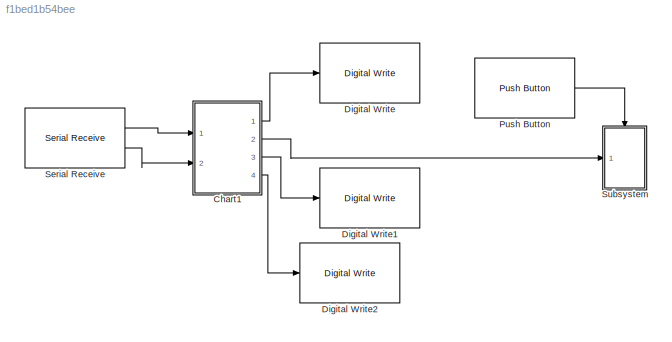
MODEL slx_f1bed1b54bee
KIND model
CONFIG AbsTol = auto
CONFIG EnableMultiTasking = on
CONFIG FixedStep = 1e-3
CONFIG MaxStep = auto
CONFIG MinStep = auto
CONFIG RelTol = 1e-3
CONFIG SampleTimeConstraint = Unconstrained
CONFIG Solver = FixedStepAuto
CONFIG SolverName = FixedStepAuto
CONFIG StartTime = 0.0
CONFIG StopTime = 10.0
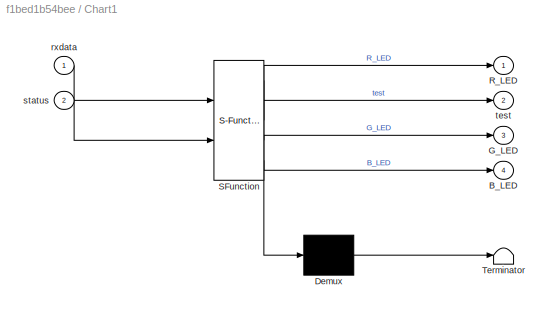
BLOCK [SubSystem] Chart1
  ErrorFcn = Stateflow.Translate.translate
  PermitHierarchicalResolution = ExplicitOnly
  Ports = [2, 4]
  RequestExecContextInheritance = off
  SFBlockType = Chart
  TreatAsAtomicUnit = on
BLOCK [Demux] Chart1/ Demux 
  Outputs = 1
  Ports = [1, 1]
BLOCK [S-Function] Chart1/ SFunction 
  EnableBusSupport = on
  FunctionName = sf_sfun
  PortCounts = [2 5]
  Ports = [2, 5]
  SFcnIsStateOwnerBlock = off
  SFunctionDeploymentMode = off
  Tag = Stateflow S-Function 1
BLOCK [Terminator] Chart1/ Terminator 
BLOCK [Outport] Chart1/B_LED
  Port = 4
BLOCK [Outport] Chart1/G_LED
  Port = 3
BLOCK [Outport] Chart1/R_LED
BLOCK [Inport] Chart1/rxdata
BLOCK [Inport] Chart1/status
  Port = 2
BLOCK [Outport] Chart1/test
  Port = 2
BLOCK [Reference] Digital Write  REF=frdmk64flib/Digital Write
  Ports = [1]
  SourceBlock = frdmk64flib/Digital Write
  SourceProductBaseCode = EC_FRDM_K64F
  SourceType = freedomk64f.DigitalWrite
BLOCK [Reference] Digital Write1  REF=frdmk64flib/Digital Write
  Ports = [1]
  SourceBlock = frdmk64flib/Digital Write
  SourceProductBaseCode = EC_FRDM_K64F
  SourceType = freedomk64f.DigitalWrite
BLOCK [Reference] Digital Write2  REF=frdmk64flib/Digital Write
  Ports = [1]
  SourceBlock = frdmk64flib/Digital Write
  SourceProductBaseCode = EC_FRDM_K64F
  SourceType = freedomk64f.DigitalWrite
BLOCK [Reference] Push Button  REF=frdmk64flib/Push Button
  Ports = [0, 1]
  SourceBlock = frdmk64flib/Push Button
  SourceProductBaseCode = EC_FRDM_K64F
  SourceType = freedomk64f.PushButton
BLOCK [Reference] Serial Receive  REF=frdmk64flib/Serial Receive
  Ports = [0, 2]
  SourceBlock = frdmk64flib/Serial Receive
  SourceProductBaseCode = EC_FRDM_K64F
  SourceType = freedomk64f.SCIRead
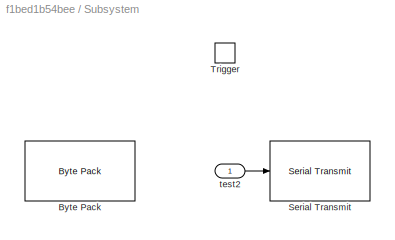
BLOCK [SubSystem] Subsystem
  Ports = [1, 0, 0, 1]
  RequestExecContextInheritance = off
BLOCK [Reference] Subsystem/Byte Pack  REF=etargetslib/Byte Pack
  Commented = on
  Ports = [1, 1]
  SourceBlock = etargetslib/Byte Pack
  SourceProductBaseCode = ME
  SourceType = Byte pack
BLOCK [Reference] Subsystem/Serial Transmit  REF=frdmk64flib/Serial Transmit
  Ports = [1]
  SourceBlock = frdmk64flib/Serial Transmit
  SourceProductBaseCode = EC_FRDM_K64F
  SourceType = freedomk64f.SCIWrite
BLOCK [TriggerPort] Subsystem/Trigger
  PortDimensions = 1
  Ports = []
  StatesWhenEnabling = held
  VariantControl = Variant
BLOCK [Inport] Subsystem/test2
  OutDataTypeStr = uint8
LINE Chart1:1 -> Digital Write:1
LINE Chart1:2 -> Subsystem:1
LINE Chart1:3 -> Digital Write1:1
LINE Chart1:4 -> Digital Write2:1
LINE Push Button:1 -> Subsystem:trigger
LINE Serial Receive:1 -> Chart1:1
LINE Serial Receive:2 -> Chart1:2
LINE Subsystem/test2:1 -> Subsystem/Serial Transmit:1
CHART Chart1 states=6 transitions=13
  STATE_LABEL 'checksum=bitsxor(data_array)'
  STATE_LABEL 'SCRIPT:\nfunction checksum=bitsxor(data_array)\n    % calculate checksum\n    % input: data_array is array of uint8 numbers\n    % output: checksum (uint8) is bit-wise XOR of all uint8 data in the array\n    checksum=data_array(1);\n    for i=2:length(data_array)\n        checksum = bitxor(checksum,data_array(i)); \n    end\nend'
  STATE_LABEL 'Receive1\nentry:\ntest=data;\nG_LED=true;\n'
  STATE_LABEL 'Receive\nentry:\ntest=data;\nR_LED=true;\n'
  STATE_LABEL 'Standby\n%Waiting for Data\nexit:\ndata=rxdata;'
  STATE_LABEL 'Checksum\nentry:\n% compare checksum first\n% if checksum is valid, operate according to FnCode\nCHECKSUM=data(5);\nCHECKSUM_REAL=bitsxor(data(1:4));'
  STATE_LABEL 'Receive2\nentry:\ntest=data;\nB_LED=true;\n'
CHART  states=0 transitions=0
